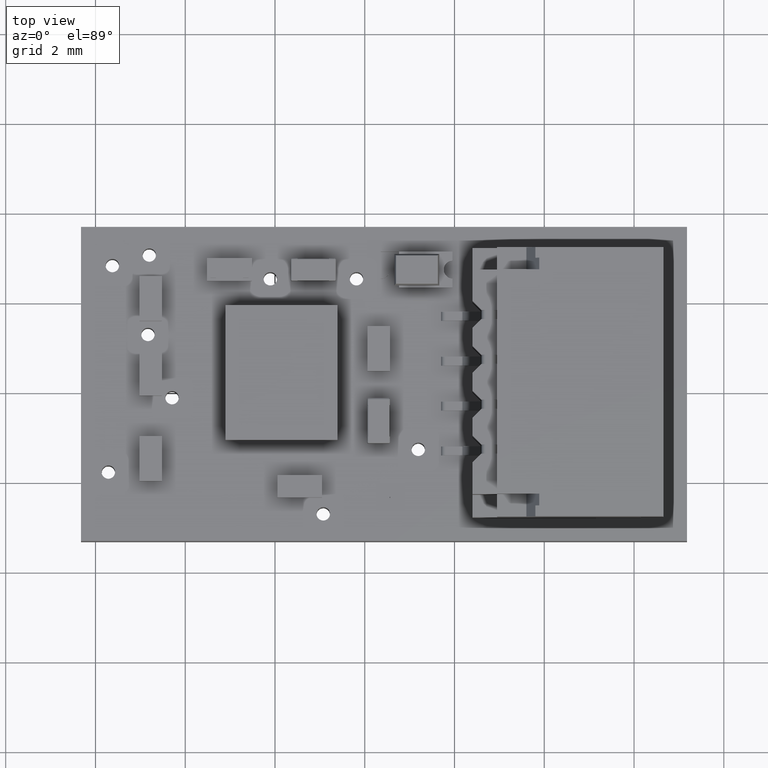
[diagram: clean part render]
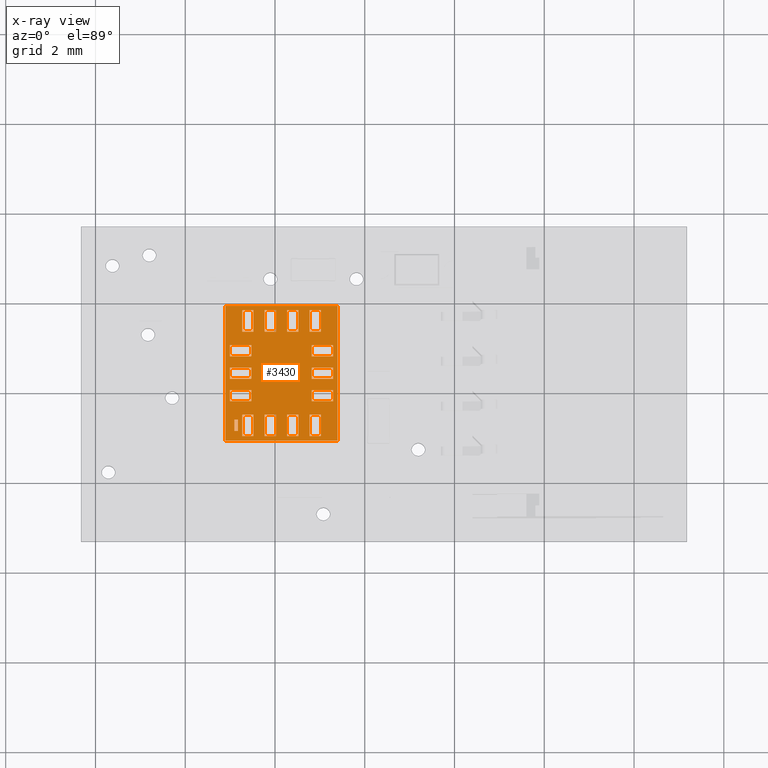
[diagram: x-ray — body ghosted, one internal face saturated and labeled with its STEP entity id]
A machine part, top view, then the same camera in x-ray: the body is ghosted and one INTERNAL B-rep face — a face not visible from any outside direction — is saturated and labeled: STEP entity #3430.
In plain terms, the highlighted planar face has unit normal (0, 0, 1).
Its self-contained STEP definition (entity closure, byte-faithful):
#3430 = ADVANCED_FACE('',(#3431,#3465,#3499,#3533,#3567,#3601,#3635,
    #3669,#3703,#3737,#3771,#3805,#3839,#3873,#3907,#3941),#3975,.F.);
#3431 = FACE_BOUND('',#3432,.T.);
#3432 = EDGE_LOOP('',(#3433,#3443,#3451,#3459));
#3433 = ORIENTED_EDGE('',*,*,#3434,.F.);
#3434 = EDGE_CURVE('',#3435,#3437,#3439,.T.);
#3435 = VERTEX_POINT('',#3436);
#3436 = CARTESIAN_POINT('',(-1.0375,0.,-0.975));
#3437 = VERTEX_POINT('',#3438);
#3438 = CARTESIAN_POINT('',(-1.2875,-0.,-0.975));
#3439 = LINE('',#3440,#3441);
#3440 = CARTESIAN_POINT('',(-1.2875,-0.,-0.975));
#3441 = VECTOR('',#3442,1.);
#3442 = DIRECTION('',(-1.,-0.,-0.));
#3443 = ORIENTED_EDGE('',*,*,#3444,.F.);
#3444 = EDGE_CURVE('',#3445,#3435,#3447,.T.);
#3445 = VERTEX_POINT('',#3446);
#3446 = CARTESIAN_POINT('',(-1.0375,-0.,-1.05));
#3447 = LINE('',#3448,#3449);
#3448 = CARTESIAN_POINT('',(-1.0375,-0.,-1.05));
#3449 = VECTOR('',#3450,1.);
#3450 = DIRECTION('',(0.,0.,1.));
#3451 = ORIENTED_EDGE('',*,*,#3452,.F.);
#3452 = EDGE_CURVE('',#3453,#3445,#3455,.T.);
#3453 = VERTEX_POINT('',#3454);
#3454 = CARTESIAN_POINT('',(-1.2875,-0.,-1.05));
#3455 = LINE('',#3456,#3457);
#3456 = CARTESIAN_POINT('',(-1.2875,-0.,-1.05));
#3457 = VECTOR('',#3458,1.);
#3458 = DIRECTION('',(1.,0.,0.));
#3459 = ORIENTED_EDGE('',*,*,#3460,.F.);
#3460 = EDGE_CURVE('',#3437,#3453,#3461,.T.);
#3461 = LINE('',#3462,#3463);
#3462 = CARTESIAN_POINT('',(-1.2875,-0.,-1.05));
#3463 = VECTOR('',#3464,1.);
#3464 = DIRECTION('',(-0.,-0.,-1.));
#3465 = FACE_BOUND('',#3466,.T.);
#3466 = EDGE_LOOP('',(#3467,#3477,#3485,#3493));
#3467 = ORIENTED_EDGE('',*,*,#3468,.T.);
#3468 = EDGE_CURVE('',#3469,#3471,#3473,.T.);
#3469 = VERTEX_POINT('',#3470);
#3470 = CARTESIAN_POINT('',(0.925,0.,0.125));
#3471 = VERTEX_POINT('',#3472);
#3472 = CARTESIAN_POINT('',(0.925,0.,0.375));
#3473 = LINE('',#3474,#3475);
#3474 = CARTESIAN_POINT('',(0.925,0.,0.375));
#3475 = VECTOR('',#3476,1.);
#3476 = DIRECTION('',(-0.,-0.,1.));
#3477 = ORIENTED_EDGE('',*,*,#3478,.T.);
#3478 = EDGE_CURVE('',#3471,#3479,#3481,.T.);
#3479 = VERTEX_POINT('',#3480);
#3480 = CARTESIAN_POINT('',(1.4,0.,0.375));
#3481 = LINE('',#3482,#3483);
#3482 = CARTESIAN_POINT('',(0.925,0.,0.375));
#3483 = VECTOR('',#3484,1.);
#3484 = DIRECTION('',(1.,0.,0.));
#3485 = ORIENTED_EDGE('',*,*,#3486,.T.);
#3486 = EDGE_CURVE('',#3479,#3487,#3489,.T.);
#3487 = VERTEX_POINT('',#3488);
#3488 = CARTESIAN_POINT('',(1.4,0.,0.125));
#3489 = LINE('',#3490,#3491);
#3490 = CARTESIAN_POINT('',(1.4,0.,0.375));
#3491 = VECTOR('',#3492,1.);
#3492 = DIRECTION('',(0.,0.,-1.));
#3493 = ORIENTED_EDGE('',*,*,#3494,.T.);
#3494 = EDGE_CURVE('',#3487,#3469,#3495,.T.);
#3495 = LINE('',#3496,#3497);
#3496 = CARTESIAN_POINT('',(0.925,0.,0.125));
#3497 = VECTOR('',#3498,1.);
#3498 = DIRECTION('',(-1.,-0.,-2.282530889443E-16));
#3499 = FACE_BOUND('',#3500,.T.);
#3500 = EDGE_LOOP('',(#3501,#3511,#3519,#3527));
#3501 = ORIENTED_EDGE('',*,*,#3502,.T.);
#3502 = EDGE_CURVE('',#3503,#3505,#3507,.T.);
#3503 = VERTEX_POINT('',#3504);
#3504 = CARTESIAN_POINT('',(0.925,0.,-0.375));
#3505 = VERTEX_POINT('',#3506);
#3506 = CARTESIAN_POINT('',(0.925,0.,-0.125));
#3507 = LINE('',#3508,#3509);
#3508 = CARTESIAN_POINT('',(0.925,0.,-0.125));
#3509 = VECTOR('',#3510,1.);
#3510 = DIRECTION('',(-0.,-0.,1.));
#3511 = ORIENTED_EDGE('',*,*,#3512,.T.);
#3512 = EDGE_CURVE('',#3505,#3513,#3515,.T.);
#3513 = VERTEX_POINT('',#3514);
#3514 = CARTESIAN_POINT('',(1.4,0.,-0.125));
#3515 = LINE('',#3516,#3517);
#3516 = CARTESIAN_POINT('',(0.925,0.,-0.125));
#3517 = VECTOR('',#3518,1.);
#3518 = DIRECTION('',(1.,0.,0.));
#3519 = ORIENTED_EDGE('',*,*,#3520,.T.);
#3520 = EDGE_CURVE('',#3513,#3521,#3523,.T.);
#3521 = VERTEX_POINT('',#3522);
#3522 = CARTESIAN_POINT('',(1.4,0.,-0.375));
#3523 = LINE('',#3524,#3525);
#3524 = CARTESIAN_POINT('',(1.4,0.,-0.125));
#3525 = VECTOR('',#3526,1.);
#3526 = DIRECTION('',(0.,0.,-1.));
#3527 = ORIENTED_EDGE('',*,*,#3528,.T.);
#3528 = EDGE_CURVE('',#3521,#3503,#3529,.T.);
#3529 = LINE('',#3530,#3531);
#3530 = CARTESIAN_POINT('',(0.925,0.,-0.375));
#3531 = VECTOR('',#3532,1.);
#3532 = DIRECTION('',(-1.,-0.,-2.282530889443E-16));
#3533 = FACE_BOUND('',#3534,.T.);
#3534 = EDGE_LOOP('',(#3535,#3545,#3553,#3561));
#3535 = ORIENTED_EDGE('',*,*,#3536,.T.);
#3536 = EDGE_CURVE('',#3537,#3539,#3541,.T.);
#3537 = VERTEX_POINT('',#3538);
#3538 = CARTESIAN_POINT('',(-1.4,0.,-0.375));
#3539 = VERTEX_POINT('',#3540);
#3540 = CARTESIAN_POINT('',(-1.4,0.,-0.125));
#3541 = LINE('',#3542,#3543);
#3542 = CARTESIAN_POINT('',(-1.4,0.,-0.125));
#3543 = VECTOR('',#3544,1.);
#3544 = DIRECTION('',(-0.,-0.,1.));
#3545 = ORIENTED_EDGE('',*,*,#3546,.T.);
#3546 = EDGE_CURVE('',#3539,#3547,#3549,.T.);
#3547 = VERTEX_POINT('',#3548);
#3548 = CARTESIAN_POINT('',(-0.925,0.,-0.125));
#3549 = LINE('',#3550,#3551);
#3550 = CARTESIAN_POINT('',(-0.925,0.,-0.125));
#3551 = VECTOR('',#3552,1.);
#3552 = DIRECTION('',(1.,-0.,-0.));
#3553 = ORIENTED_EDGE('',*,*,#3554,.T.);
#3554 = EDGE_CURVE('',#3547,#3555,#3557,.T.);
#3555 = VERTEX_POINT('',#3556);
#3556 = CARTESIAN_POINT('',(-0.925,0.,-0.375));
#3557 = LINE('',#3558,#3559);
#3558 = CARTESIAN_POINT('',(-0.925,0.,-0.125));
#3559 = VECTOR('',#3560,1.);
#3560 = DIRECTION('',(0.,0.,-1.));
#3561 = ORIENTED_EDGE('',*,*,#3562,.T.);
#3562 = EDGE_CURVE('',#3555,#3537,#3563,.T.);
#3563 = LINE('',#3564,#3565);
#3564 = CARTESIAN_POINT('',(-0.925,0.,-0.375));
#3565 = VECTOR('',#3566,1.);
#3566 = DIRECTION('',(-1.,0.,2.282530889443E-16));
#3567 = FACE_BOUND('',#3568,.T.);
#3568 = EDGE_LOOP('',(#3569,#3579,#3587,#3595));
#3569 = ORIENTED_EDGE('',*,*,#3570,.T.);
#3570 = EDGE_CURVE('',#3571,#3573,#3575,.T.);
#3571 = VERTEX_POINT('',#3572);
#3572 = CARTESIAN_POINT('',(0.375,0.,-1.15));
#3573 = VERTEX_POINT('',#3574);
#3574 = CARTESIAN_POINT('',(0.375,0.,-0.675));
#3575 = LINE('',#3576,#3577);
#3576 = CARTESIAN_POINT('',(0.375,0.,-0.675));
#3577 = VECTOR('',#3578,1.);
#3578 = DIRECTION('',(4.565061778886E-16,-0.,1.));
#3579 = ORIENTED_EDGE('',*,*,#3580,.T.);
#3580 = EDGE_CURVE('',#3573,#3581,#3583,.T.);
#3581 = VERTEX_POINT('',#3582);
#3582 = CARTESIAN_POINT('',(0.625,0.,-0.675));
#3583 = LINE('',#3584,#3585);
#3584 = CARTESIAN_POINT('',(0.625,0.,-0.675));
#3585 = VECTOR('',#3586,1.);
#3586 = DIRECTION('',(1.,-0.,-4.336808689942E-16));
#3587 = ORIENTED_EDGE('',*,*,#3588,.T.);
#3588 = EDGE_CURVE('',#3581,#3589,#3591,.T.);
#3589 = VERTEX_POINT('',#3590);
#3590 = CARTESIAN_POINT('',(0.625,0.,-1.15));
#3591 = LINE('',#3592,#3593);
#3592 = CARTESIAN_POINT('',(0.625,0.,-0.675));
#3593 = VECTOR('',#3594,1.);
#3594 = DIRECTION('',(-4.565061778886E-16,0.,-1.));
#3595 = ORIENTED_EDGE('',*,*,#3596,.T.);
#3596 = EDGE_CURVE('',#3589,#3571,#3597,.T.);
#3597 = LINE('',#3598,#3599);
#3598 = CARTESIAN_POINT('',(0.625,0.,-1.15));
#3599 = VECTOR('',#3600,1.);
#3600 = DIRECTION('',(-1.,0.,0.));
#3601 = FACE_BOUND('',#3602,.T.);
#3602 = EDGE_LOOP('',(#3603,#3613,#3621,#3629));
#3603 = ORIENTED_EDGE('',*,*,#3604,.T.);
#3604 = EDGE_CURVE('',#3605,#3607,#3609,.T.);
#3605 = VERTEX_POINT('',#3606);
#3606 = CARTESIAN_POINT('',(-0.125,0.,-1.15));
#3607 = VERTEX_POINT('',#3608);
#3608 = CARTESIAN_POINT('',(-0.125,0.,-0.675));
#3609 = LINE('',#3610,#3611);
#3610 = CARTESIAN_POINT('',(-0.125,0.,-0.675));
#3611 = VECTOR('',#3612,1.);
#3612 = DIRECTION('',(4.565061778886E-16,-0.,1.));
#3613 = ORIENTED_EDGE('',*,*,#3614,.T.);
#3614 = EDGE_CURVE('',#3607,#3615,#3617,.T.);
#3615 = VERTEX_POINT('',#3616);
#3616 = CARTESIAN_POINT('',(0.125,0.,-0.675));
#3617 = LINE('',#3618,#3619);
#3618 = CARTESIAN_POINT('',(0.125,0.,-0.675));
#3619 = VECTOR('',#3620,1.);
#3620 = DIRECTION('',(1.,-0.,-4.336808689942E-16));
#3621 = ORIENTED_EDGE('',*,*,#3622,.T.);
#3622 = EDGE_CURVE('',#3615,#3623,#3625,.T.);
#3623 = VERTEX_POINT('',#3624);
#3624 = CARTESIAN_POINT('',(0.125,0.,-1.15));
#3625 = LINE('',#3626,#3627);
#3626 = CARTESIAN_POINT('',(0.125,0.,-0.675));
#3627 = VECTOR('',#3628,1.);
#3628 = DIRECTION('',(-4.565061778886E-16,0.,-1.));
#3629 = ORIENTED_EDGE('',*,*,#3630,.T.);
#3630 = EDGE_CURVE('',#3623,#3605,#3631,.T.);
#3631 = LINE('',#3632,#3633);
#3632 = CARTESIAN_POINT('',(0.125,0.,-1.15));
#3633 = VECTOR('',#3634,1.);
#3634 = DIRECTION('',(-1.,0.,0.));
#3635 = FACE_BOUND('',#3636,.T.);
#3636 = EDGE_LOOP('',(#3637,#3647,#3655,#3663));
#3637 = ORIENTED_EDGE('',*,*,#3638,.T.);
#3638 = EDGE_CURVE('',#3639,#3641,#3643,.T.);
#3639 = VERTEX_POINT('',#3640);
#3640 = CARTESIAN_POINT('',(0.925,0.,-0.875));
#3641 = VERTEX_POINT('',#3642);
#3642 = CARTESIAN_POINT('',(0.925,0.,-0.625));
#3643 = LINE('',#3644,#3645);
#3644 = CARTESIAN_POINT('',(0.925,0.,-0.625));
#3645 = VECTOR('',#3646,1.);
#3646 = DIRECTION('',(-0.,-0.,1.));
#3647 = ORIENTED_EDGE('',*,*,#3648,.T.);
#3648 = EDGE_CURVE('',#3641,#3649,#3651,.T.);
#3649 = VERTEX_POINT('',#3650);
#3650 = CARTESIAN_POINT('',(1.4,0.,-0.625));
#3651 = LINE('',#3652,#3653);
#3652 = CARTESIAN_POINT('',(0.925,0.,-0.625));
#3653 = VECTOR('',#3654,1.);
#3654 = DIRECTION('',(1.,0.,0.));
#3655 = ORIENTED_EDGE('',*,*,#3656,.T.);
#3656 = EDGE_CURVE('',#3649,#3657,#3659,.T.);
#3657 = VERTEX_POINT('',#3658);
#3658 = CARTESIAN_POINT('',(1.4,0.,-0.875));
#3659 = LINE('',#3660,#3661);
#3660 = CARTESIAN_POINT('',(1.4,0.,-0.625));
#3661 = VECTOR('',#3662,1.);
#3662 = DIRECTION('',(0.,0.,-1.));
#3663 = ORIENTED_EDGE('',*,*,#3664,.T.);
#3664 = EDGE_CURVE('',#3657,#3639,#3665,.T.);
#3665 = LINE('',#3666,#3667);
#3666 = CARTESIAN_POINT('',(0.925,0.,-0.875));
#3667 = VECTOR('',#3668,1.);
#3668 = DIRECTION('',(-1.,-0.,-2.282530889443E-16));
#3669 = FACE_BOUND('',#3670,.T.);
#3670 = EDGE_LOOP('',(#3671,#3681,#3689,#3697));
#3671 = ORIENTED_EDGE('',*,*,#3672,.T.);
#3672 = EDGE_CURVE('',#3673,#3675,#3677,.T.);
#3673 = VERTEX_POINT('',#3674);
#3674 = CARTESIAN_POINT('',(-0.375,0.,1.15));
#3675 = VERTEX_POINT('',#3676);
#3676 = CARTESIAN_POINT('',(-0.375,0.,0.675));
#3677 = LINE('',#3678,#3679);
#3678 = CARTESIAN_POINT('',(-0.375,0.,0.675));
#3679 = VECTOR('',#3680,1.);
#3680 = DIRECTION('',(4.565061778886E-16,-0.,-1.));
#3681 = ORIENTED_EDGE('',*,*,#3682,.T.);
#3682 = EDGE_CURVE('',#3675,#3683,#3685,.T.);
#3683 = VERTEX_POINT('',#3684);
#3684 = CARTESIAN_POINT('',(-0.625,0.,0.675));
#3685 = LINE('',#3686,#3687);
#3686 = CARTESIAN_POINT('',(-0.375,0.,0.675));
#3687 = VECTOR('',#3688,1.);
#3688 = DIRECTION('',(-1.,0.,4.336808689942E-16));
#3689 = ORIENTED_EDGE('',*,*,#3690,.T.);
#3690 = EDGE_CURVE('',#3683,#3691,#3693,.T.);
#3691 = VERTEX_POINT('',#3692);
#3692 = CARTESIAN_POINT('',(-0.625,0.,1.15));
#3693 = LINE('',#3694,#3695);
#3694 = CARTESIAN_POINT('',(-0.625,0.,0.675));
#3695 = VECTOR('',#3696,1.);
#3696 = DIRECTION('',(-4.565061778886E-16,0.,1.));
#3697 = ORIENTED_EDGE('',*,*,#3698,.T.);
#3698 = EDGE_CURVE('',#3691,#3673,#3699,.T.);
#3699 = LINE('',#3700,#3701);
#3700 = CARTESIAN_POINT('',(-0.375,0.,1.15));
#3701 = VECTOR('',#3702,1.);
#3702 = DIRECTION('',(1.,-0.,-0.));
#3703 = FACE_BOUND('',#3704,.T.);
#3704 = EDGE_LOOP('',(#3705,#3715,#3723,#3731));
#3705 = ORIENTED_EDGE('',*,*,#3706,.F.);
#3706 = EDGE_CURVE('',#3707,#3709,#3711,.T.);
#3707 = VERTEX_POINT('',#3708);
#3708 = CARTESIAN_POINT('',(-1.5,0.,-1.25));
#3709 = VERTEX_POINT('',#3710);
#3710 = CARTESIAN_POINT('',(-1.5,0.,1.25));
#3711 = LINE('',#3712,#3713);
#3712 = CARTESIAN_POINT('',(-1.5,0.,1.25));
#3713 = VECTOR('',#3714,1.);
#3714 = DIRECTION('',(-0.,-0.,1.));
#3715 = ORIENTED_EDGE('',*,*,#3716,.F.);
#3716 = EDGE_CURVE('',#3717,#3707,#3719,.T.);
#3717 = VERTEX_POINT('',#3718);
#3718 = CARTESIAN_POINT('',(1.5,0.,-1.25));
#3719 = LINE('',#3720,#3721);
#3720 = CARTESIAN_POINT('',(1.5,0.,-1.25));
#3721 = VECTOR('',#3722,1.);
#3722 = DIRECTION('',(-1.,0.,7.228014483237E-17));
#3723 = ORIENTED_EDGE('',*,*,#3724,.F.);
#3724 = EDGE_CURVE('',#3725,#3717,#3727,.T.);
#3725 = VERTEX_POINT('',#3726);
#3726 = CARTESIAN_POINT('',(1.5,0.,1.25));
#3727 = LINE('',#3728,#3729);
#3728 = CARTESIAN_POINT('',(1.5,0.,1.25));
#3729 = VECTOR('',#3730,1.);
#3730 = DIRECTION('',(0.,0.,-1.));
#3731 = ORIENTED_EDGE('',*,*,#3732,.F.);
#3732 = EDGE_CURVE('',#3709,#3725,#3733,.T.);
#3733 = LINE('',#3734,#3735);
#3734 = CARTESIAN_POINT('',(1.5,0.,1.25));
#3735 = VECTOR('',#3736,1.);
#3736 = DIRECTION('',(1.,-0.,-7.228014483237E-17));
#3737 = FACE_BOUND('',#3738,.T.);
#3738 = EDGE_LOOP('',(#3739,#3749,#3757,#3765));
#3739 = ORIENTED_EDGE('',*,*,#3740,.T.);
#3740 = EDGE_CURVE('',#3741,#3743,#3745,.T.);
#3741 = VERTEX_POINT('',#3742);
#3742 = CARTESIAN_POINT('',(-0.625,0.,-1.15));
#3743 = VERTEX_POINT('',#3744);
#3744 = CARTESIAN_POINT('',(-0.625,0.,-0.675));
#3745 = LINE('',#3746,#3747);
#3746 = CARTESIAN_POINT('',(-0.625,0.,-0.675));
#3747 = VECTOR('',#3748,1.);
#3748 = DIRECTION('',(4.565061778886E-16,-0.,1.));
#3749 = ORIENTED_EDGE('',*,*,#3750,.T.);
#3750 = EDGE_CURVE('',#3743,#3751,#3753,.T.);
#3751 = VERTEX_POINT('',#3752);
#3752 = CARTESIAN_POINT('',(-0.375,0.,-0.675));
#3753 = LINE('',#3754,#3755);
#3754 = CARTESIAN_POINT('',(-0.375,0.,-0.675));
#3755 = VECTOR('',#3756,1.);
#3756 = DIRECTION('',(1.,-0.,-4.336808689942E-16));
#3757 = ORIENTED_EDGE('',*,*,#3758,.T.);
#3758 = EDGE_CURVE('',#3751,#3759,#3761,.T.);
#3759 = VERTEX_POINT('',#3760);
#3760 = CARTESIAN_POINT('',(-0.375,0.,-1.15));
#3761 = LINE('',#3762,#3763);
#3762 = CARTESIAN_POINT('',(-0.375,0.,-0.675));
#3763 = VECTOR('',#3764,1.);
#3764 = DIRECTION('',(-4.565061778886E-16,0.,-1.));
#3765 = ORIENTED_EDGE('',*,*,#3766,.T.);
#3766 = EDGE_CURVE('',#3759,#3741,#3767,.T.);
#3767 = LINE('',#3768,#3769);
#3768 = CARTESIAN_POINT('',(-0.375,0.,-1.15));
#3769 = VECTOR('',#3770,1.);
#3770 = DIRECTION('',(-1.,0.,0.));
#3771 = FACE_BOUND('',#3772,.T.);
#3772 = EDGE_LOOP('',(#3773,#3783,#3791,#3799));
#3773 = ORIENTED_EDGE('',*,*,#3774,.T.);
#3774 = EDGE_CURVE('',#3775,#3777,#3779,.T.);
#3775 = VERTEX_POINT('',#3776);
#3776 = CARTESIAN_POINT('',(-1.4,0.,-0.875));
#3777 = VERTEX_POINT('',#3778);
#3778 = CARTESIAN_POINT('',(-1.4,0.,-0.625));
#3779 = LINE('',#3780,#3781);
#3780 = CARTESIAN_POINT('',(-1.4,0.,-0.625));
#3781 = VECTOR('',#3782,1.);
#3782 = DIRECTION('',(-0.,-0.,1.));
#3783 = ORIENTED_EDGE('',*,*,#3784,.T.);
#3784 = EDGE_CURVE('',#3777,#3785,#3787,.T.);
#3785 = VERTEX_POINT('',#3786);
#3786 = CARTESIAN_POINT('',(-0.925,0.,-0.625));
#3787 = LINE('',#3788,#3789);
#3788 = CARTESIAN_POINT('',(-0.925,0.,-0.625));
#3789 = VECTOR('',#3790,1.);
#3790 = DIRECTION('',(1.,-0.,-0.));
#3791 = ORIENTED_EDGE('',*,*,#3792,.T.);
#3792 = EDGE_CURVE('',#3785,#3793,#3795,.T.);
#3793 = VERTEX_POINT('',#3794);
#3794 = CARTESIAN_POINT('',(-0.925,0.,-0.875));
#3795 = LINE('',#3796,#3797);
#3796 = CARTESIAN_POINT('',(-0.925,0.,-0.625));
#3797 = VECTOR('',#3798,1.);
#3798 = DIRECTION('',(0.,0.,-1.));
#3799 = ORIENTED_EDGE('',*,*,#3800,.T.);
#3800 = EDGE_CURVE('',#3793,#3775,#3801,.T.);
#3801 = LINE('',#3802,#3803);
#3802 = CARTESIAN_POINT('',(-0.925,0.,-0.875));
#3803 = VECTOR('',#3804,1.);
#3804 = DIRECTION('',(-1.,0.,2.282530889443E-16));
#3805 = FACE_BOUND('',#3806,.T.);
#3806 = EDGE_LOOP('',(#3807,#3817,#3825,#3833));
#3807 = ORIENTED_EDGE('',*,*,#3808,.T.);
#3808 = EDGE_CURVE('',#3809,#3811,#3813,.T.);
#3809 = VERTEX_POINT('',#3810);
#3810 = CARTESIAN_POINT('',(0.125,0.,1.15));
#3811 = VERTEX_POINT('',#3812);
#3812 = CARTESIAN_POINT('',(0.125,0.,0.675));
#3813 = LINE('',#3814,#3815);
#3814 = CARTESIAN_POINT('',(0.125,0.,0.675));
#3815 = VECTOR('',#3816,1.);
#3816 = DIRECTION('',(4.565061778886E-16,-0.,-1.));
#3817 = ORIENTED_EDGE('',*,*,#3818,.T.);
#3818 = EDGE_CURVE('',#3811,#3819,#3821,.T.);
#3819 = VERTEX_POINT('',#3820);
#3820 = CARTESIAN_POINT('',(-0.125,0.,0.675));
#3821 = LINE('',#3822,#3823);
#3822 = CARTESIAN_POINT('',(0.125,0.,0.675));
#3823 = VECTOR('',#3824,1.);
#3824 = DIRECTION('',(-1.,0.,4.336808689942E-16));
#3825 = ORIENTED_EDGE('',*,*,#3826,.T.);
#3826 = EDGE_CURVE('',#3819,#3827,#3829,.T.);
#3827 = VERTEX_POINT('',#3828);
#3828 = CARTESIAN_POINT('',(-0.125,0.,1.15));
#3829 = LINE('',#3830,#3831);
#3830 = CARTESIAN_POINT('',(-0.125,0.,0.675));
#3831 = VECTOR('',#3832,1.);
#3832 = DIRECTION('',(-4.565061778886E-16,0.,1.));
#3833 = ORIENTED_EDGE('',*,*,#3834,.T.);
#3834 = EDGE_CURVE('',#3827,#3809,#3835,.T.);
#3835 = LINE('',#3836,#3837);
#3836 = CARTESIAN_POINT('',(0.125,0.,1.15));
#3837 = VECTOR('',#3838,1.);
#3838 = DIRECTION('',(1.,-0.,-0.));
#3839 = FACE_BOUND('',#3840,.T.);
#3840 = EDGE_LOOP('',(#3841,#3851,#3859,#3867));
#3841 = ORIENTED_EDGE('',*,*,#3842,.T.);
#3842 = EDGE_CURVE('',#3843,#3845,#3847,.T.);
#3843 = VERTEX_POINT('',#3844);
#3844 = CARTESIAN_POINT('',(0.625,0.,1.15));
#3845 = VERTEX_POINT('',#3846);
#3846 = CARTESIAN_POINT('',(0.625,0.,0.675));
#3847 = LINE('',#3848,#3849);
#3848 = CARTESIAN_POINT('',(0.625,0.,0.675));
#3849 = VECTOR('',#3850,1.);
#3850 = DIRECTION('',(4.565061778886E-16,-0.,-1.));
#3851 = ORIENTED_EDGE('',*,*,#3852,.T.);
#3852 = EDGE_CURVE('',#3845,#3853,#3855,.T.);
#3853 = VERTEX_POINT('',#3854);
#3854 = CARTESIAN_POINT('',(0.375,0.,0.675));
#3855 = LINE('',#3856,#3857);
#3856 = CARTESIAN_POINT('',(0.625,0.,0.675));
#3857 = VECTOR('',#3858,1.);
#3858 = DIRECTION('',(-1.,0.,4.336808689942E-16));
#3859 = ORIENTED_EDGE('',*,*,#3860,.T.);
#3860 = EDGE_CURVE('',#3853,#3861,#3863,.T.);
#3861 = VERTEX_POINT('',#3862);
#3862 = CARTESIAN_POINT('',(0.375,0.,1.15));
#3863 = LINE('',#3864,#3865);
#3864 = CARTESIAN_POINT('',(0.375,0.,0.675));
#3865 = VECTOR('',#3866,1.);
#3866 = DIRECTION('',(-4.565061778886E-16,0.,1.));
#3867 = ORIENTED_EDGE('',*,*,#3868,.T.);
#3868 = EDGE_CURVE('',#3861,#3843,#3869,.T.);
#3869 = LINE('',#3870,#3871);
#3870 = CARTESIAN_POINT('',(0.625,0.,1.15));
#3871 = VECTOR('',#3872,1.);
#3872 = DIRECTION('',(1.,-0.,-0.));
#3873 = FACE_BOUND('',#3874,.T.);
#3874 = EDGE_LOOP('',(#3875,#3885,#3893,#3901));
#3875 = ORIENTED_EDGE('',*,*,#3876,.T.);
#3876 = EDGE_CURVE('',#3877,#3879,#3881,.T.);
#3877 = VERTEX_POINT('',#3878);
#3878 = CARTESIAN_POINT('',(0.925,0.,0.625));
#3879 = VERTEX_POINT('',#3880);
#3880 = CARTESIAN_POINT('',(0.925,0.,0.875));
#3881 = LINE('',#3882,#3883);
#3882 = CARTESIAN_POINT('',(0.925,0.,0.875));
#3883 = VECTOR('',#3884,1.);
#3884 = DIRECTION('',(-0.,-0.,1.));
#3885 = ORIENTED_EDGE('',*,*,#3886,.T.);
#3886 = EDGE_CURVE('',#3879,#3887,#3889,.T.);
#3887 = VERTEX_POINT('',#3888);
#3888 = CARTESIAN_POINT('',(1.4,0.,0.875));
#3889 = LINE('',#3890,#3891);
#3890 = CARTESIAN_POINT('',(0.925,0.,0.875));
#3891 = VECTOR('',#3892,1.);
#3892 = DIRECTION('',(1.,0.,0.));
#3893 = ORIENTED_EDGE('',*,*,#3894,.T.);
#3894 = EDGE_CURVE('',#3887,#3895,#3897,.T.);
#3895 = VERTEX_POINT('',#3896);
#3896 = CARTESIAN_POINT('',(1.4,0.,0.625));
#3897 = LINE('',#3898,#3899);
#3898 = CARTESIAN_POINT('',(1.4,0.,0.875));
#3899 = VECTOR('',#3900,1.);
#3900 = DIRECTION('',(0.,0.,-1.));
#3901 = ORIENTED_EDGE('',*,*,#3902,.T.);
#3902 = EDGE_CURVE('',#3895,#3877,#3903,.T.);
#3903 = LINE('',#3904,#3905);
#3904 = CARTESIAN_POINT('',(0.925,0.,0.625));
#3905 = VECTOR('',#3906,1.);
#3906 = DIRECTION('',(-1.,-0.,-2.282530889443E-16));
#3907 = FACE_BOUND('',#3908,.T.);
#3908 = EDGE_LOOP('',(#3909,#3919,#3927,#3935));
#3909 = ORIENTED_EDGE('',*,*,#3910,.T.);
#3910 = EDGE_CURVE('',#3911,#3913,#3915,.T.);
#3911 = VERTEX_POINT('',#3912);
#3912 = CARTESIAN_POINT('',(-1.4,0.,0.125));
#3913 = VERTEX_POINT('',#3914);
#3914 = CARTESIAN_POINT('',(-1.4,0.,0.375));
#3915 = LINE('',#3916,#3917);
#3916 = CARTESIAN_POINT('',(-1.4,0.,0.375));
#3917 = VECTOR('',#3918,1.);
#3918 = DIRECTION('',(-0.,-0.,1.));
#3919 = ORIENTED_EDGE('',*,*,#3920,.T.);
#3920 = EDGE_CURVE('',#3913,#3921,#3923,.T.);
#3921 = VERTEX_POINT('',#3922);
#3922 = CARTESIAN_POINT('',(-0.925,0.,0.375));
#3923 = LINE('',#3924,#3925);
#3924 = CARTESIAN_POINT('',(-0.925,0.,0.375));
#3925 = VECTOR('',#3926,1.);
#3926 = DIRECTION('',(1.,-0.,-0.));
#3927 = ORIENTED_EDGE('',*,*,#3928,.T.);
#3928 = EDGE_CURVE('',#3921,#3929,#3931,.T.);
#3929 = VERTEX_POINT('',#3930);
#3930 = CARTESIAN_POINT('',(-0.925,0.,0.125));
#3931 = LINE('',#3932,#3933);
#3932 = CARTESIAN_POINT('',(-0.925,0.,0.375));
#3933 = VECTOR('',#3934,1.);
#3934 = DIRECTION('',(0.,0.,-1.));
#3935 = ORIENTED_EDGE('',*,*,#3936,.T.);
#3936 = EDGE_CURVE('',#3929,#3911,#3937,.T.);
#3937 = LINE('',#3938,#3939);
#3938 = CARTESIAN_POINT('',(-0.925,0.,0.125));
#3939 = VECTOR('',#3940,1.);
#3940 = DIRECTION('',(-1.,0.,2.282530889443E-16));
#3941 = FACE_BOUND('',#3942,.T.);
#3942 = EDGE_LOOP('',(#3943,#3953,#3961,#3969));
#3943 = ORIENTED_EDGE('',*,*,#3944,.T.);
#3944 = EDGE_CURVE('',#3945,#3947,#3949,.T.);
#3945 = VERTEX_POINT('',#3946);
#3946 = CARTESIAN_POINT('',(-1.4,0.,0.625));
#3947 = VERTEX_POINT('',#3948);
#3948 = CARTESIAN_POINT('',(-1.4,0.,0.875));
#3949 = LINE('',#3950,#3951);
#3950 = CARTESIAN_POINT('',(-1.4,0.,0.875));
#3951 = VECTOR('',#3952,1.);
#3952 = DIRECTION('',(-0.,-0.,1.));
#3953 = ORIENTED_EDGE('',*,*,#3954,.T.);
#3954 = EDGE_CURVE('',#3947,#3955,#3957,.T.);
#3955 = VERTEX_POINT('',#3956);
#3956 = CARTESIAN_POINT('',(-0.925,0.,0.875));
#3957 = LINE('',#3958,#3959);
#3958 = CARTESIAN_POINT('',(-0.925,0.,0.875));
#3959 = VECTOR('',#3960,1.);
#3960 = DIRECTION('',(1.,-0.,-0.));
#3961 = ORIENTED_EDGE('',*,*,#3962,.T.);
#3962 = EDGE_CURVE('',#3955,#3963,#3965,.T.);
#3963 = VERTEX_POINT('',#3964);
#3964 = CARTESIAN_POINT('',(-0.925,0.,0.625));
#3965 = LINE('',#3966,#3967);
#3966 = CARTESIAN_POINT('',(-0.925,0.,0.875));
#3967 = VECTOR('',#3968,1.);
#3968 = DIRECTION('',(0.,0.,-1.));
#3969 = ORIENTED_EDGE('',*,*,#3970,.T.);
#3970 = EDGE_CURVE('',#3963,#3945,#3971,.T.);
#3971 = LINE('',#3972,#3973);
#3972 = CARTESIAN_POINT('',(-0.925,0.,0.625));
#3973 = VECTOR('',#3974,1.);
#3974 = DIRECTION('',(-1.,0.,2.282530889443E-16));
#3975 = PLANE('',#3976);
#3976 = AXIS2_PLACEMENT_3D('',#3977,#3978,#3979);
#3977 = CARTESIAN_POINT('',(0.,0.,0.));
#3978 = DIRECTION('',(0.,1.,0.));
#3979 = DIRECTION('',(0.,-0.,1.));